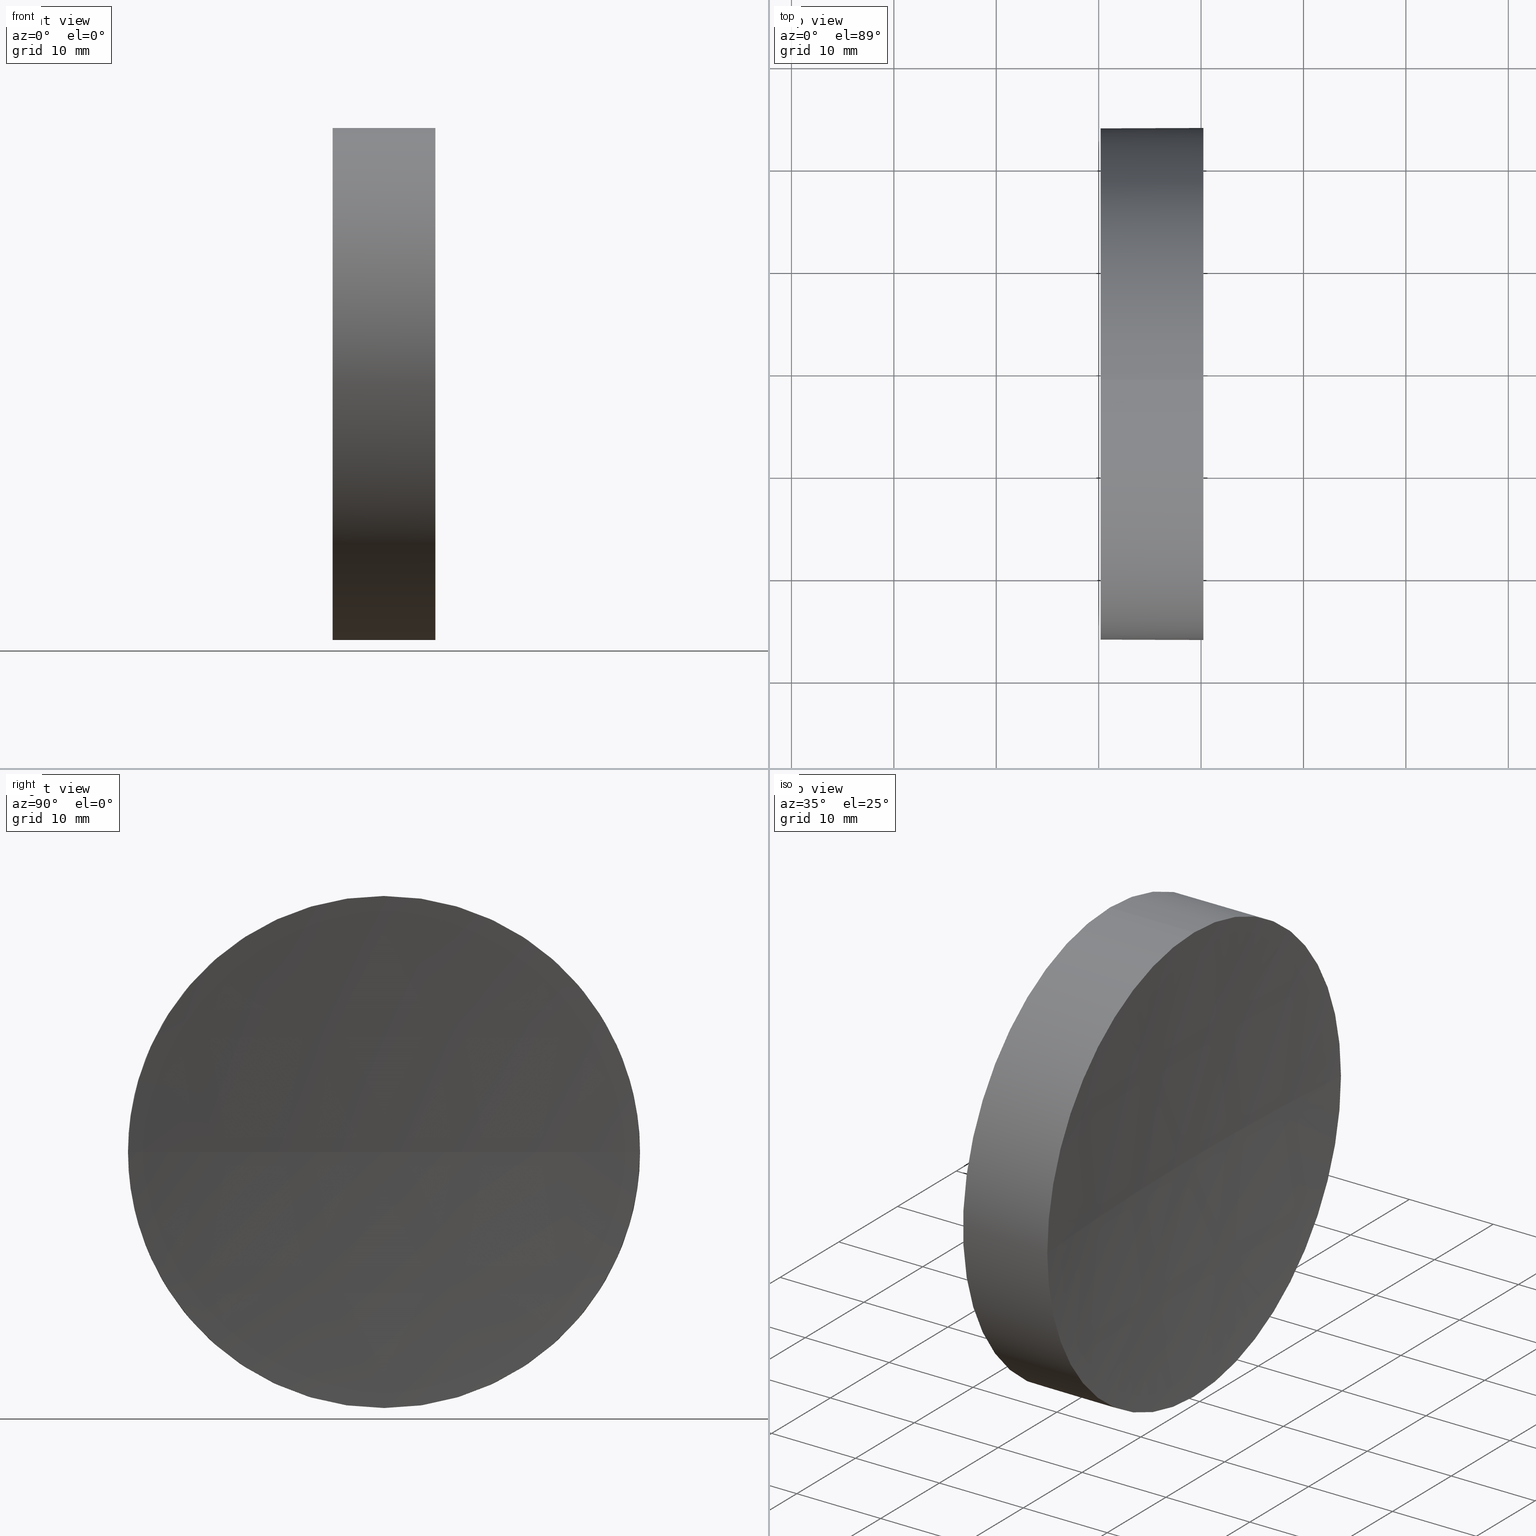
[diagram: canonical four-view strip — front | top / right | iso, engineering-drawing reading convention]
A machine part, canonical four-view strip (front | top / right | iso — engineering-drawing reading convention). The complete STEP part file that produces these views, byte-faithful:
ISO-10303-21;
HEADER;
FILE_DESCRIPTION (( 'STEP AP214' ),
    '1' );
FILE_NAME ('270045.STEP',
    '2019-07-23T05:29:37',
    ( '' ),
    ( '' ),
    'SwSTEP 2.0',
    'SolidWorks 2016',
    '' );
FILE_SCHEMA (( 'AUTOMOTIVE_DESIGN' ));
ENDSEC;

DATA;
#1 = EDGE_CURVE ( 'NONE', #88, #142, #150, .T. ) ;
#2 = ORIENTED_EDGE ( 'NONE', *, *, #17, .T. ) ;
#3 = DIRECTION ( 'NONE',  ( -1.000000000000000000, -0.0000000000000000000, -0.0000000000000000000 ) ) ;
#4 = CARTESIAN_POINT ( 'NONE',  ( 217.9702860043302100, 138.7560422467448700, 24.99999999999999300 ) ) ;
#5 = EDGE_LOOP ( 'NONE', ( #79, #83, #113, #54 ) ) ;
#6 = STYLED_ITEM ( 'NONE', ( #51 ), #43 ) ;
#7 =( NAMED_UNIT ( * ) PLANE_ANGLE_UNIT ( ) SI_UNIT ( $, .RADIAN. ) );
#8 = EDGE_CURVE ( 'NONE', #123, #41, #68, .T. ) ;
#9 = AXIS2_PLACEMENT_3D ( 'NONE', #47, #3, #178 ) ;
#10 = FACE_OUTER_BOUND ( 'NONE', #5, .T. ) ;
#11 = FACE_OUTER_BOUND ( 'NONE', #119, .T. ) ;
#12 = CARTESIAN_POINT ( 'NONE',  ( 230.1853110698390300, 138.7560422467448700, -24.99999999999999300 ) ) ;
#13 = ORIENTED_EDGE ( 'NONE', *, *, #94, .F. ) ;
#14 = EDGE_CURVE ( 'NONE', #78, #112, #31, .T. ) ;
#15 = SURFACE_STYLE_USAGE ( .BOTH. , #98 ) ;
#16 = CARTESIAN_POINT ( 'NONE',  ( 217.9702860043302100, 138.7560422467448700, 0.0000000000000000000 ) ) ;
#17 = EDGE_CURVE ( 'NONE', #112, #41, #62, .T. ) ;
#18 = SURFACE_STYLE_USAGE ( .BOTH. , #32 ) ;
#19 = DIRECTION ( 'NONE',  ( 0.0000000000000000000, 0.0000000000000000000, 1.000000000000000000 ) ) ;
#20 =( NAMED_UNIT ( * ) SI_UNIT ( $, .STERADIAN. ) SOLID_ANGLE_UNIT ( ) );
#21 = ORIENTED_EDGE ( 'NONE', *, *, #172, .F. ) ;
#22 = VECTOR ( 'NONE', #157, 1000.000000000000000 ) ;
#23 = COLOUR_RGB ( '',1.000000000000000000, 1.000000000000000000, 1.000000000000000000 ) ;
#24 = AXIS2_PLACEMENT_3D ( 'NONE', #171, #97, #58 ) ;
#25 = ORIENTED_EDGE ( 'NONE', *, *, #124, .F. ) ;
#26 = CARTESIAN_POINT ( 'NONE',  ( 539.1853158016228900, 138.7560422467448700, 0.0000000000000000000 ) ) ;
#27 = EDGE_CURVE ( 'NONE', #78, #142, #169, .T. ) ;
#28 =( LENGTH_UNIT ( ) NAMED_UNIT ( * ) SI_UNIT ( .MILLI., .METRE. ) );
#29 = DIRECTION ( 'NONE',  ( 0.0000000000000000000, 0.0000000000000000000, 1.000000000000000000 ) ) ;
#30 = DIRECTION ( 'NONE',  ( -1.000000000000000000, -0.0000000000000000000, -0.0000000000000000000 ) ) ;
#31 = CIRCLE ( 'NONE', #24, 24.99999999999999300 ) ;
#32 = SURFACE_SIDE_STYLE ('',( #110 ) ) ;
#33 = PRODUCT_CONTEXT ( 'NONE', #86, 'mechanical' ) ;
#34 = APPLICATION_CONTEXT ( 'automotive_design' ) ;
#35 = UNCERTAINTY_MEASURE_WITH_UNIT (LENGTH_MEASURE( 1.000000000000000100E-005 ), #104, 'distance_accuracy_value', 'NONE');
#36 = CLOSED_SHELL ( 'NONE', ( #183, #90, #121, #181, #38 ) ) ;
#37 = EDGE_CURVE ( 'NONE', #144, #123, #40, .T. ) ;
#38 = ADVANCED_FACE ( 'NONE', ( #93 ), #129, .F. ) ;
#39 = AXIS2_PLACEMENT_3D ( 'NONE', #75, #100, #164 ) ;
#40 = LINE ( 'NONE', #4, #95 ) ;
#41 = VERTEX_POINT ( 'NONE', #12 ) ;
#42 = CIRCLE ( 'NONE', #156, 24.99999999999999300 ) ;
#43 = ADVANCED_BREP_SHAPE_REPRESENTATION ( '270045', ( #135, #154 ), #165 ) ;
#44 =( NAMED_UNIT ( * ) SI_UNIT ( $, .STERADIAN. ) SOLID_ANGLE_UNIT ( ) );
#45 = DIRECTION ( 'NONE',  ( 0.0000000000000000000, 0.0000000000000000000, 1.000000000000000000 ) ) ;
#46 = CARTESIAN_POINT ( 'NONE',  ( 230.1853110698390300, 138.7560422467448700, 0.0000000000000000000 ) ) ;
#47 = CARTESIAN_POINT ( 'NONE',  ( 240.2287972240879400, 138.7560422467448700, 0.0000000000000000000 ) ) ;
#48 = FILL_AREA_STYLE ('',( #145 ) ) ;
#49 = UNCERTAINTY_MEASURE_WITH_UNIT (LENGTH_MEASURE( 1.000000000000000100E-005 ), #28, 'distance_accuracy_value', 'NONE');
#50 = ORIENTED_EDGE ( 'NONE', *, *, #1, .T. ) ;
#51 = PRESENTATION_STYLE_ASSIGNMENT (( #15 ) ) ;
#52 =( GEOMETRIC_REPRESENTATION_CONTEXT ( 3 ) GLOBAL_UNCERTAINTY_ASSIGNED_CONTEXT ( ( #49 ) ) GLOBAL_UNIT_ASSIGNED_CONTEXT ( ( #28, #127, #44 ) ) REPRESENTATION_CONTEXT ( 'NONE', 'WORKASPACE' ) );
#53 = ORIENTED_EDGE ( 'NONE', *, *, #37, .T. ) ;
#54 = ORIENTED_EDGE ( 'NONE', *, *, #136, .F. ) ;
#55 = COLOUR_RGB ( '',1.000000000000000000, 1.000000000000000000, 1.000000000000000000 ) ;
#56 = PRESENTATION_STYLE_ASSIGNMENT (( #18 ) ) ;
#57 = PRESENTATION_LAYER_ASSIGNMENT (  '', '', ( #151 ) ) ;
#58 = DIRECTION ( 'NONE',  ( 0.0000000000000000000, 0.0000000000000000000, 1.000000000000000000 ) ) ;
#59 = CARTESIAN_POINT ( 'NONE',  ( 240.2287972240879400, 138.7560422467448700, 24.99999999999999300 ) ) ;
#60 = DIRECTION ( 'NONE',  ( -1.000000000000000000, -0.0000000000000000000, -0.0000000000000000000 ) ) ;
#61 = CARTESIAN_POINT ( 'NONE',  ( 539.1853158016228900, 138.7560422467448700, 0.0000000000000000000 ) ) ;
#62 = LINE ( 'NONE', #126, #22 ) ;
#63 = SHAPE_DEFINITION_REPRESENTATION ( #91, #43 ) ;
#64 = AXIS2_PLACEMENT_3D ( 'NONE', #16, #60, #116 ) ;
#65 = ORIENTED_EDGE ( 'NONE', *, *, #124, .T. ) ;
#66 = PRODUCT ( '270045', '270045', '', ( #33 ) ) ;
#67 = FACE_OUTER_BOUND ( 'NONE', #180, .T. ) ;
#68 = CIRCLE ( 'NONE', #143, 24.99999999999999300 ) ;
#69 = DIRECTION ( 'NONE',  ( -1.000000000000000000, -0.0000000000000000000, -0.0000000000000000000 ) ) ;
#70 = CARTESIAN_POINT ( 'NONE',  ( 230.1853110698390300, 138.7560422467448700, 0.0000000000000000000 ) ) ;
#71 = FILL_AREA_STYLE_COLOUR ( '', #55 ) ;
#72 = EDGE_LOOP ( 'NONE', ( #106, #81 ) ) ;
#73 =( LENGTH_UNIT ( ) NAMED_UNIT ( * ) SI_UNIT ( .MILLI., .METRE. ) );
#74 = DIRECTION ( 'NONE',  ( 0.0000000000000000000, -1.224646799147353200E-016, 1.000000000000000000 ) ) ;
#75 = CARTESIAN_POINT ( 'NONE',  ( 230.1853110698390300, 138.7560422467448700, 0.0000000000000000000 ) ) ;
#76 = DIRECTION ( 'NONE',  ( 1.000000000000000000, 0.0000000000000000000, 0.0000000000000000000 ) ) ;
#77 =( NAMED_UNIT ( * ) PLANE_ANGLE_UNIT ( ) SI_UNIT ( $, .RADIAN. ) );
#78 = VERTEX_POINT ( 'NONE', #146 ) ;
#79 = ORIENTED_EDGE ( 'NONE', *, *, #14, .F. ) ;
#80 = ORIENTED_EDGE ( 'NONE', *, *, #37, .F. ) ;
#81 = ORIENTED_EDGE ( 'NONE', *, *, #172, .T. ) ;
#82 = AXIS2_PLACEMENT_3D ( 'NONE', #46, #76, #177 ) ;
#83 = ORIENTED_EDGE ( 'NONE', *, *, #27, .T. ) ;
#84 = DIRECTION ( 'NONE',  ( 0.0000000000000000000, 0.0000000000000000000, 1.000000000000000000 ) ) ;
#85 = DIRECTION ( 'NONE',  ( 0.0000000000000000000, -1.000000000000000000, 0.0000000000000000000 ) ) ;
#86 = APPLICATION_CONTEXT ( 'automotive_design' ) ;
#87 = DIRECTION ( 'NONE',  ( 0.0000000000000000000, -1.000000000000000000, 0.0000000000000000000 ) ) ;
#88 = VERTEX_POINT ( 'NONE', #162 ) ;
#89 = CARTESIAN_POINT ( 'NONE',  ( 239.1853158016228900, 138.7560422467448400, 0.0000000000000000000 ) ) ;
#90 = ADVANCED_FACE ( 'NONE', ( #10 ), #134, .F. ) ;
#91 = PRODUCT_DEFINITION_SHAPE ( 'NONE', 'NONE',  #96 ) ;
#92 = UNCERTAINTY_MEASURE_WITH_UNIT (LENGTH_MEASURE( 1.000000000000000100E-005 ), #73, 'distance_accuracy_value', 'NONE');
#93 = FACE_OUTER_BOUND ( 'NONE', #72, .T. ) ;
#94 = EDGE_CURVE ( 'NONE', #88, #144, #175, .T. ) ;
#95 = VECTOR ( 'NONE', #101, 1000.000000000000000 ) ;
#96 = PRODUCT_DEFINITION ( 'δ֪', '', #118, #137 ) ;
#97 = DIRECTION ( 'NONE',  ( -1.000000000000000000, -0.0000000000000000000, -0.0000000000000000000 ) ) ;
#98 = SURFACE_SIDE_STYLE ('',( #184 ) ) ;
#99 = SPHERICAL_SURFACE ( 'NONE', #185, 300.0000000000000000 ) ;
#100 = DIRECTION ( 'NONE',  ( -1.000000000000000000, -0.0000000000000000000, -0.0000000000000000000 ) ) ;
#101 = DIRECTION ( 'NONE',  ( -1.000000000000000000, -0.0000000000000000000, -0.0000000000000000000 ) ) ;
#102 = DIRECTION ( 'NONE',  ( -1.000000000000000000, -0.0000000000000000000, -0.0000000000000000000 ) ) ;
#103 = PRESENTATION_LAYER_ASSIGNMENT (  '', '', ( #6 ) ) ;
#104 =( LENGTH_UNIT ( ) NAMED_UNIT ( * ) SI_UNIT ( .MILLI., .METRE. ) );
#105 = CARTESIAN_POINT ( 'NONE',  ( 230.1853110698390300, 138.7560422467448700, 24.99999999999999300 ) ) ;
#106 = ORIENTED_EDGE ( 'NONE', *, *, #8, .T. ) ;
#107 = APPLICATION_PROTOCOL_DEFINITION ( 'draft international standard', 'automotive_design', 1998, #34 ) ;
#108 = ORIENTED_EDGE ( 'NONE', *, *, #27, .F. ) ;
#109 = AXIS2_PLACEMENT_3D ( 'NONE', #26, #125, #170 ) ;
#110 = SURFACE_STYLE_FILL_AREA ( #48 ) ;
#111 = MECHANICAL_DESIGN_GEOMETRIC_PRESENTATION_REPRESENTATION (  '', ( #6 ), #52 ) ;
#112 = VERTEX_POINT ( 'NONE', #128 ) ;
#113 = ORIENTED_EDGE ( 'NONE', *, *, #1, .F. ) ;
#114 = CARTESIAN_POINT ( 'NONE',  ( 240.2287972240879400, 138.7560422467448700, 0.0000000000000000000 ) ) ;
#115 = CARTESIAN_POINT ( 'NONE',  ( 539.1853158016228900, 138.7560422467448700, 0.0000000000000000000 ) ) ;
#116 = DIRECTION ( 'NONE',  ( 0.0000000000000000000, 0.0000000000000000000, 1.000000000000000000 ) ) ;
#117 = DIRECTION ( 'NONE',  ( 1.000000000000000000, 0.0000000000000000000, 0.0000000000000000000 ) ) ;
#118 = PRODUCT_DEFINITION_FORMATION_WITH_SPECIFIED_SOURCE ( '�κ�', '', #66, .NOT_KNOWN. ) ;
#119 = EDGE_LOOP ( 'NONE', ( #155, #2, #139, #80, #65 ) ) ;
#120 = CYLINDRICAL_SURFACE ( 'NONE', #64, 24.99999999999999300 ) ;
#121 = ADVANCED_FACE ( 'NONE', ( #67 ), #99, .F. ) ;
#122 = MECHANICAL_DESIGN_GEOMETRIC_PRESENTATION_REPRESENTATION (  '', ( #151 ), #149 ) ;
#123 = VERTEX_POINT ( 'NONE', #105 ) ;
#124 = EDGE_CURVE ( 'NONE', #144, #78, #182, .T. ) ;
#125 = DIRECTION ( 'NONE',  ( 0.0000000000000000000, 0.0000000000000000000, -1.000000000000000000 ) ) ;
#126 = CARTESIAN_POINT ( 'NONE',  ( 217.9702860043302100, 138.7560422467448700, -24.99999999999999300 ) ) ;
#127 =( NAMED_UNIT ( * ) PLANE_ANGLE_UNIT ( ) SI_UNIT ( $, .RADIAN. ) );
#128 = CARTESIAN_POINT ( 'NONE',  ( 240.2287972240879400, 138.7560422467448700, -24.99999999999999300 ) ) ;
#129 = PLANE ( 'NONE',  #82 ) ;
#130 = DIRECTION ( 'NONE',  ( 0.0000000000000000000, 0.0000000000000000000, 1.000000000000000000 ) ) ;
#131 = AXIS2_PLACEMENT_3D ( 'NONE', #174, #30, #19 ) ;
#132 = CARTESIAN_POINT ( 'NONE',  ( 240.2287972240879400, 138.7560422467448700, 0.0000000000000000000 ) ) ;
#133 = CARTESIAN_POINT ( 'NONE',  ( 0.0000000000000000000, 0.0000000000000000000, 0.0000000000000000000 ) ) ;
#134 = SPHERICAL_SURFACE ( 'NONE', #140, 300.0000000000000000 ) ;
#135 = MANIFOLD_SOLID_BREP ( '��ת1', #36 ) ;
#136 = EDGE_CURVE ( 'NONE', #112, #88, #42, .T. ) ;
#137 = PRODUCT_DEFINITION_CONTEXT ( 'detailed design', #34, 'design' ) ;
#138 = CYLINDRICAL_SURFACE ( 'NONE', #131, 24.99999999999999300 ) ;
#139 = ORIENTED_EDGE ( 'NONE', *, *, #8, .F. ) ;
#140 = AXIS2_PLACEMENT_3D ( 'NONE', #115, #45, #87 ) ;
#141 = CIRCLE ( 'NONE', #39, 24.99999999999999300 ) ;
#142 = VERTEX_POINT ( 'NONE', #89 ) ;
#143 = AXIS2_PLACEMENT_3D ( 'NONE', #70, #69, #84 ) ;
#144 = VERTEX_POINT ( 'NONE', #59 ) ;
#145 = FILL_AREA_STYLE_COLOUR ( '', #23 ) ;
#146 = CARTESIAN_POINT ( 'NONE',  ( 240.2287972240879700, 163.7560422467450100, 3.061616997868400400E-015 ) ) ;
#147 = DIRECTION ( 'NONE',  ( -1.000000000000000000, -0.0000000000000000000, -0.0000000000000000000 ) ) ;
#148 = APPLICATION_PROTOCOL_DEFINITION ( 'draft international standard', 'automotive_design', 1998, #86 ) ;
#149 =( GEOMETRIC_REPRESENTATION_CONTEXT ( 3 ) GLOBAL_UNCERTAINTY_ASSIGNED_CONTEXT ( ( #35 ) ) GLOBAL_UNIT_ASSIGNED_CONTEXT ( ( #104, #77, #159 ) ) REPRESENTATION_CONTEXT ( 'NONE', 'WORKASPACE' ) );
#150 = CIRCLE ( 'NONE', #109, 300.0000000000000000 ) ;
#151 = STYLED_ITEM ( 'NONE', ( #56 ), #135 ) ;
#152 = AXIS2_PLACEMENT_3D ( 'NONE', #161, #74, #176 ) ;
#153 = PRODUCT_RELATED_PRODUCT_CATEGORY ( 'part', '', ( #66 ) ) ;
#154 = AXIS2_PLACEMENT_3D ( 'NONE', #133, #160, #117 ) ;
#155 = ORIENTED_EDGE ( 'NONE', *, *, #14, .T. ) ;
#156 = AXIS2_PLACEMENT_3D ( 'NONE', #132, #147, #179 ) ;
#157 = DIRECTION ( 'NONE',  ( -1.000000000000000000, -0.0000000000000000000, -0.0000000000000000000 ) ) ;
#158 = ORIENTED_EDGE ( 'NONE', *, *, #136, .T. ) ;
#159 =( NAMED_UNIT ( * ) SI_UNIT ( $, .STERADIAN. ) SOLID_ANGLE_UNIT ( ) );
#160 = DIRECTION ( 'NONE',  ( 0.0000000000000000000, 0.0000000000000000000, 1.000000000000000000 ) ) ;
#161 = CARTESIAN_POINT ( 'NONE',  ( 539.1853158016228900, 138.7560422467448700, 0.0000000000000000000 ) ) ;
#162 = CARTESIAN_POINT ( 'NONE',  ( 240.2287972240879700, 113.7560422467447400, 0.0000000000000000000 ) ) ;
#163 = ORIENTED_EDGE ( 'NONE', *, *, #17, .F. ) ;
#164 = DIRECTION ( 'NONE',  ( 0.0000000000000000000, 0.0000000000000000000, 1.000000000000000000 ) ) ;
#165 =( GEOMETRIC_REPRESENTATION_CONTEXT ( 3 ) GLOBAL_UNCERTAINTY_ASSIGNED_CONTEXT ( ( #92 ) ) GLOBAL_UNIT_ASSIGNED_CONTEXT ( ( #73, #7, #20 ) ) REPRESENTATION_CONTEXT ( 'NONE', 'WORKASPACE' ) );
#166 = ORIENTED_EDGE ( 'NONE', *, *, #94, .T. ) ;
#167 = FACE_OUTER_BOUND ( 'NONE', #186, .T. ) ;
#168 = AXIS2_PLACEMENT_3D ( 'NONE', #114, #102, #29 ) ;
#169 = CIRCLE ( 'NONE', #152, 300.0000000000000000 ) ;
#170 = DIRECTION ( 'NONE',  ( -1.000000000000000000, 0.0000000000000000000, 0.0000000000000000000 ) ) ;
#171 = CARTESIAN_POINT ( 'NONE',  ( 240.2287972240879400, 138.7560422467448700, 0.0000000000000000000 ) ) ;
#172 = EDGE_CURVE ( 'NONE', #41, #123, #141, .T. ) ;
#173 = FILL_AREA_STYLE ('',( #71 ) ) ;
#174 = CARTESIAN_POINT ( 'NONE',  ( 217.9702860043302100, 138.7560422467448700, 0.0000000000000000000 ) ) ;
#175 = CIRCLE ( 'NONE', #168, 24.99999999999999300 ) ;
#176 = DIRECTION ( 'NONE',  ( 0.0000000000000000000, -1.000000000000000000, -1.224646799147353200E-016 ) ) ;
#177 = DIRECTION ( 'NONE',  ( 0.0000000000000000000, 0.0000000000000000000, -1.000000000000000000 ) ) ;
#178 = DIRECTION ( 'NONE',  ( 0.0000000000000000000, 0.0000000000000000000, 1.000000000000000000 ) ) ;
#179 = DIRECTION ( 'NONE',  ( 0.0000000000000000000, 0.0000000000000000000, 1.000000000000000000 ) ) ;
#180 = EDGE_LOOP ( 'NONE', ( #108, #25, #13, #50 ) ) ;
#181 = ADVANCED_FACE ( 'NONE', ( #167 ), #138, .T. ) ;
#182 = CIRCLE ( 'NONE', #9, 24.99999999999999300 ) ;
#183 = ADVANCED_FACE ( 'NONE', ( #11 ), #120, .T. ) ;
#184 = SURFACE_STYLE_FILL_AREA ( #173 ) ;
#185 = AXIS2_PLACEMENT_3D ( 'NONE', #61, #130, #85 ) ;
#186 = EDGE_LOOP ( 'NONE', ( #163, #158, #166, #53, #21 ) ) ;
ENDSEC;
END-ISO-10303-21;
